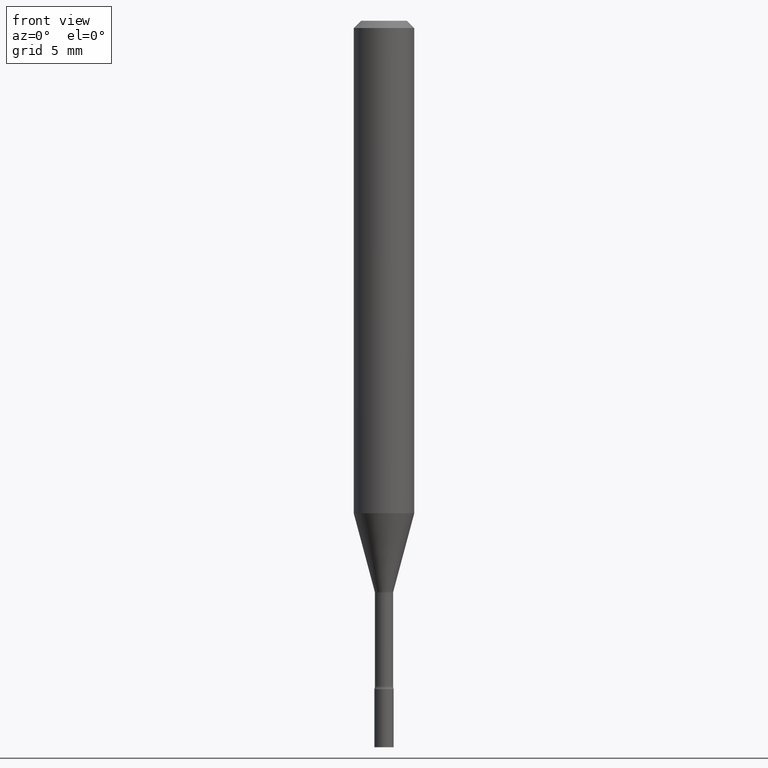
[diagram: clean part render]
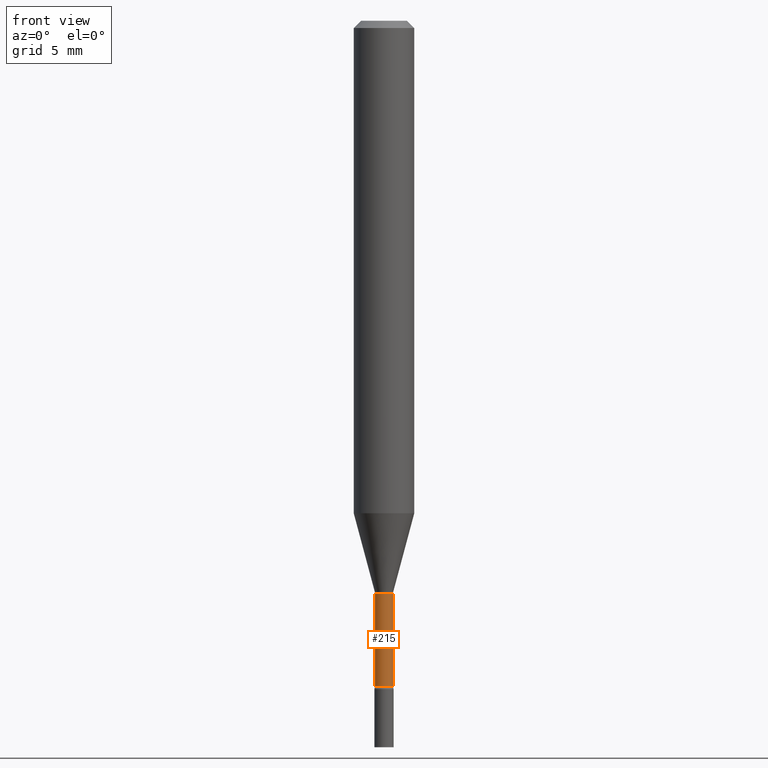
[diagram: same view with one face highlighted and labeled with its STEP entity id]
A machine part, front view. The second image highlights one B-rep face of the part: STEP entity #215.
In plain terms, the highlighted cylindrical surface (edge-blend (fillet) strip) has radius 0.4775 mm, axis along (-0, 0, 1).
Its self-contained STEP definition (entity closure, byte-faithful):
#7 = ORIENTED_EDGE ( 'NONE', *, *, #395, .F. ) ;
#45 = VERTEX_POINT ( 'NONE', #87 ) ;
#62 = DIRECTION ( 'NONE',  ( -2.445468806185136877E-29, 3.491481338843145188E-15, 1.000000000000000000 ) ) ;
#76 = CARTESIAN_POINT ( 'NONE',  ( -0.01880000000000000421, -4.328698728913427470E-15, -1.181974787463810905 ) ) ;
#78 = CARTESIAN_POINT ( 'NONE',  ( 3.360370590718575552E-29, -4.797718613059662933E-15, -1.374121224617320003 ) ) ;
#80 = VECTOR ( 'NONE', #62, 39.37007874015748143 ) ;
#87 = CARTESIAN_POINT ( 'NONE',  ( 0.01880000000000000768, -4.928998311400164734E-15, -1.374121224617320003 ) ) ;
#106 = CYLINDRICAL_SURFACE ( 'NONE', #294, 0.01880000000000000768 ) ;
#115 = ORIENTED_EDGE ( 'NONE', *, *, #258, .F. ) ;
#118 = CARTESIAN_POINT ( 'NONE',  ( 2.890482472440056423E-29, -4.126842913412989440E-15, -1.181974787463810905 ) ) ;
#148 = AXIS2_PLACEMENT_3D ( 'NONE', #78, #317, #348 ) ;
#209 = CIRCLE ( 'NONE', #278, 0.01880000000000000421 ) ;
#215 = ADVANCED_FACE ( 'NONE', ( #338 ), #106, .T. ) ;
#240 = VERTEX_POINT ( 'NONE', #414 ) ;
#258 = EDGE_CURVE ( 'NONE', #400, #361, #333, .T. ) ;
#272 = ORIENTED_EDGE ( 'NONE', *, *, #286, .T. ) ;
#276 = DIRECTION ( 'NONE',  ( 1.000000000000000000, -6.982962677686259611E-15, 0.000000000000000000 ) ) ;
#278 = AXIS2_PLACEMENT_3D ( 'NONE', #118, #470, #276 ) ;
#286 = EDGE_CURVE ( 'NONE', #45, #240, #478, .T. ) ;
#294 = AXIS2_PLACEMENT_3D ( 'NONE', #343, #505, #424 ) ;
#311 = EDGE_LOOP ( 'NONE', ( #115, #326, #272, #7 ) ) ;
#317 = DIRECTION ( 'NONE',  ( -2.445468806185136597E-29, 3.491481338843145583E-15, 1.000000000000000000 ) ) ;
#326 = ORIENTED_EDGE ( 'NONE', *, *, #391, .T. ) ;
#333 = LINE ( 'NONE', #502, #80 ) ;
#338 = FACE_OUTER_BOUND ( 'NONE', #311, .T. ) ;
#343 = CARTESIAN_POINT ( 'NONE',  ( 0.000000000000000000, 0.000000000000000000, 0.000000000000000000 ) ) ;
#346 = CARTESIAN_POINT ( 'NONE',  ( 0.01880000000000000768, -1.312796983405018755E-16, 9.167212338496362317E-31 ) ) ;
#348 = DIRECTION ( 'NONE',  ( 1.000000000000000000, -6.982962677686258033E-15, 0.000000000000000000 ) ) ;
#361 = VERTEX_POINT ( 'NONE', #76 ) ;
#391 = EDGE_CURVE ( 'NONE', #400, #45, #444, .T. ) ;
#395 = EDGE_CURVE ( 'NONE', #361, #240, #209, .T. ) ;
#400 = VERTEX_POINT ( 'NONE', #435 ) ;
#414 = CARTESIAN_POINT ( 'NONE',  ( 0.01880000000000000421, -4.258122611753491242E-15, -1.181974787463810905 ) ) ;
#424 = DIRECTION ( 'NONE',  ( 1.000000000000000000, -6.982962677686267499E-15, 4.876176775795935232E-29 ) ) ;
#435 = CARTESIAN_POINT ( 'NONE',  ( -0.01880000000000000768, -4.670136139594141812E-15, -1.374121224617320003 ) ) ;
#444 = CIRCLE ( 'NONE', #148, 0.01880000000000000768 ) ;
#464 = VECTOR ( 'NONE', #474, 39.37007874015748143 ) ;
#470 = DIRECTION ( 'NONE',  ( -2.445468806185136597E-29, 3.491481338843145583E-15, 1.000000000000000000 ) ) ;
#474 = DIRECTION ( 'NONE',  ( -2.445468806185136877E-29, 3.491481338843145188E-15, 1.000000000000000000 ) ) ;
#478 = LINE ( 'NONE', #346, #464 ) ;
#502 = CARTESIAN_POINT ( 'NONE',  ( -0.01880000000000000768, 1.335820343228988895E-16, -9.247597969679226384E-31 ) ) ;
#505 = DIRECTION ( 'NONE',  ( -2.445468806185136597E-29, 3.491481338843145583E-15, 1.000000000000000000 ) ) ;